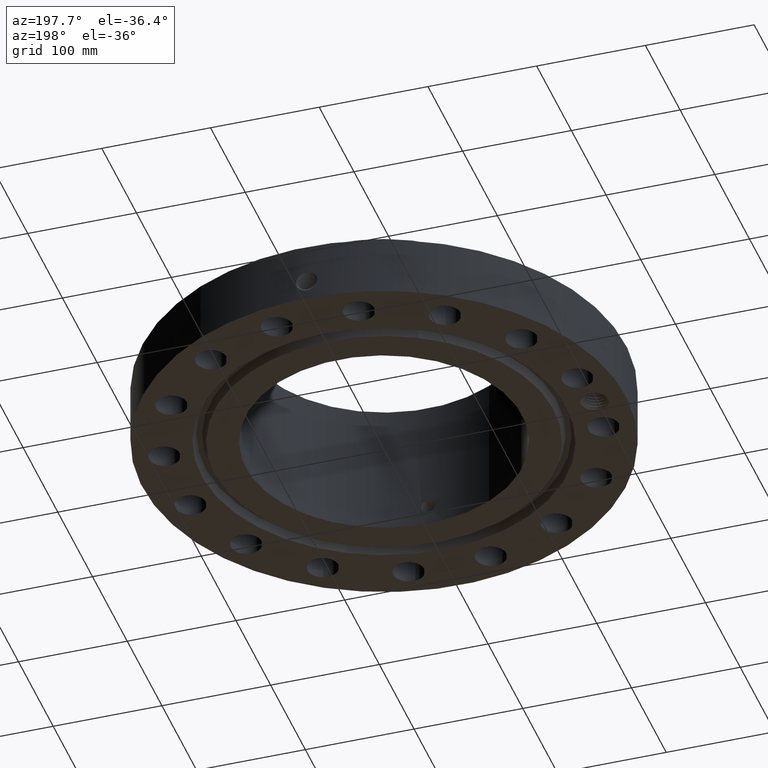
[diagram: clean part render]
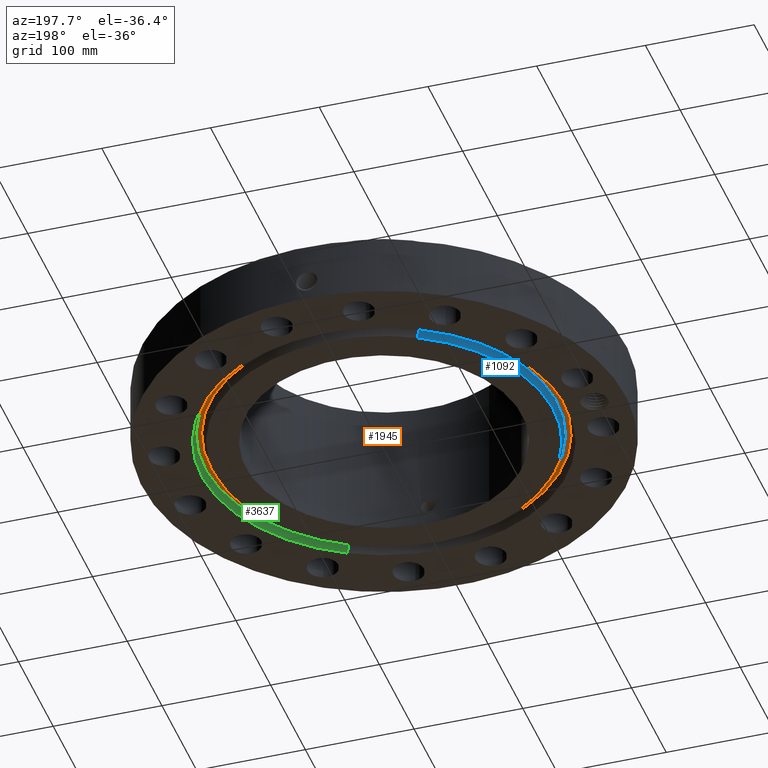
[diagram: same view with three faces highlighted in distinct colors, each labeled with its STEP entity id]
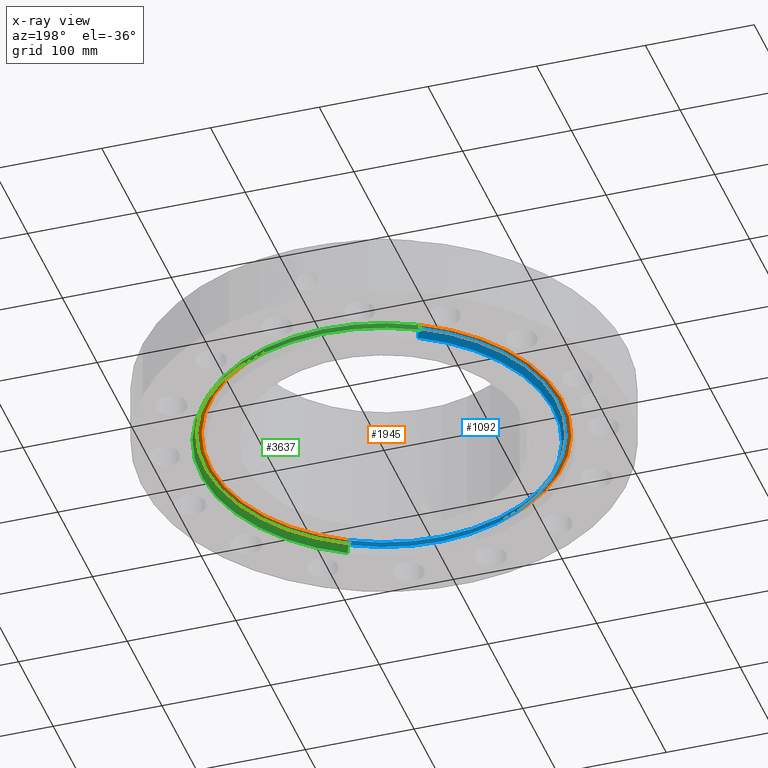
[diagram: x-ray of the same camera — body ghosted, the three highlighted faces saturated]
A machine part, auxiliary view with three faces highlighted in distinct colors.
The next image is the same camera in x-ray (body ghosted, the three faces saturated) — at least one of them is partly hidden behind the body in this view.
Their STEP definitions:

[orange] entity #1945 — the highlighted planar face has unit normal (0, 0, 1).
#1425=AXIS2_PLACEMENT_3D('Circle Axis2P3D',#1423,#1424,$) ;
#1451=AXIS2_PLACEMENT_3D('Circle Axis2P3D',#1449,#1450,$) ;
#1921=AXIS2_PLACEMENT_3D('Plane Axis2P3D',#1918,#1919,#1920) ;
#1925=AXIS2_PLACEMENT_3D('Circle Axis2P3D',#1923,#1924,$) ;
#1934=AXIS2_PLACEMENT_3D('Circle Axis2P3D',#1932,#1933,$) ;
#1423=CARTESIAN_POINT('Axis2P3D Location',(0.,0.,0.313000000001)) ;
#1427=CARTESIAN_POINT('Vertex',(3.01744636299,-5.52339851839,0.313000000001)) ;
#1429=CARTESIAN_POINT('Vertex',(-3.01744636299,5.52339851839,0.313000000001)) ;
#1449=CARTESIAN_POINT('Axis2P3D Location',(0.,0.,0.313000000001)) ;
#1918=CARTESIAN_POINT('Axis2P3D Location',(0.,6.2938790699,0.313000000001)) ;
#1923=CARTESIAN_POINT('Axis2P3D Location',(0.,0.,0.313000000001)) ;
#1927=CARTESIAN_POINT('Vertex',(-3.09522925423,5.66577914576,0.313000000001)) ;
#1929=CARTESIAN_POINT('Vertex',(3.09522925423,-5.66577914576,0.313000000001)) ;
#1932=CARTESIAN_POINT('Axis2P3D Location',(0.,0.,0.313000000001)) ;
#1424=DIRECTION('Axis2P3D Direction',(0.,0.,0.0393700787402)) ;
#1450=DIRECTION('Axis2P3D Direction',(0.,0.,0.0393700787402)) ;
#1919=DIRECTION('Axis2P3D Direction',(0.,0.,0.0393700787402)) ;
#1920=DIRECTION('Axis2P3D XDirection',(0.0393700787402,0.,0.)) ;
#1924=DIRECTION('Axis2P3D Direction',(0.,0.,0.0393700787402)) ;
#1933=DIRECTION('Axis2P3D Direction',(0.,0.,0.0393700787402)) ;
#1938=ORIENTED_EDGE('',*,*,#1931,.F.) ;
#1939=ORIENTED_EDGE('',*,*,#1936,.F.) ;
#1942=ORIENTED_EDGE('',*,*,#1431,.T.) ;
#1943=ORIENTED_EDGE('',*,*,#1453,.T.) ;
#1944=FACE_BOUND('',#1941,.T.) ;
#1945=ADVANCED_FACE('PartBody',(#1940,#1944),#1922,.F.) ;
#1426=CIRCLE('generated circle',#1425,6.2938790699) ;
#1452=CIRCLE('generated circle',#1451,6.2938790699) ;
#1926=CIRCLE('generated circle',#1925,6.45612093016) ;
#1935=CIRCLE('generated circle',#1934,6.45612093016) ;
#1431=EDGE_CURVE('',#1428,#1430,#1426,.T.) ;
#1453=EDGE_CURVE('',#1430,#1428,#1452,.T.) ;
#1931=EDGE_CURVE('',#1928,#1930,#1926,.T.) ;
#1936=EDGE_CURVE('',#1930,#1928,#1935,.T.) ;
#1937=EDGE_LOOP('',(#1938,#1939)) ;
#1941=EDGE_LOOP('',(#1942,#1943)) ;
#1940=FACE_OUTER_BOUND('',#1937,.T.) ;
#1922=PLANE('',#1921) ;
#1428=VERTEX_POINT('',#1427) ;
#1430=VERTEX_POINT('',#1429) ;
#1928=VERTEX_POINT('',#1927) ;
#1930=VERTEX_POINT('',#1929) ;

[blue] entity #1092 — the highlighted conical surface has half-angle 23 deg.
#611=AXIS2_PLACEMENT_3D('Circle Axis2P3D',#609,#610,$) ;
#1053=AXIS2_PLACEMENT_3D('Cone Axis2P3D',#1050,#1051,#1052) ;
#1083=AXIS2_PLACEMENT_3D('Circle Axis2P3D',#1081,#1082,$) ;
#604=CARTESIAN_POINT('Vertex',(-2.94391251981,5.38879572131,-1.48612530855E-016)) ;
#606=CARTESIAN_POINT('Vertex',(2.94391251981,-5.38879572131,0.)) ;
#609=CARTESIAN_POINT('Axis2P3D Location',(-1.67844740731E-015,1.1189649382E-015,0.)) ;
#1050=CARTESIAN_POINT('Axis2P3D Location',(0.,0.,-0.0600000000002)) ;
#1055=CARTESIAN_POINT('Line Origine',(-2.97383908161,5.44357592523,0.147056332492)) ;
#1059=CARTESIAN_POINT('Vertex',(-3.0037656434,5.49835612915,0.294112664984)) ;
#1066=CARTESIAN_POINT('Vertex',(3.0037656434,-5.49835612915,0.294112664984)) ;
#1069=CARTESIAN_POINT('Line Origine',(2.97383908161,-5.44357592523,0.147056332492)) ;
#1081=CARTESIAN_POINT('Axis2P3D Location',(0.,0.,0.294112664984)) ;
#610=DIRECTION('Axis2P3D Direction',(0.,0.,-0.0393700787402)) ;
#1051=DIRECTION('Axis2P3D Direction',(0.,0.,0.0393700787402)) ;
#1052=DIRECTION('Axis2P3D XDirection',(-0.0188750212049,0.0345504945626,0.)) ;
#1056=DIRECTION('Vector Direction',(-0.00737505833565,0.0134999537303,0.0362403485611)) ;
#1070=DIRECTION('Vector Direction',(0.00737505833565,-0.0134999537303,0.0362403485611)) ;
#1082=DIRECTION('Axis2P3D Direction',(0.,0.,0.0393700787402)) ;
#1057=VECTOR('Line Direction',#1056,0.0393700787402) ;
#1071=VECTOR('Line Direction',#1070,0.0393700787402) ;
#1087=ORIENTED_EDGE('',*,*,#1073,.F.) ;
#1088=ORIENTED_EDGE('',*,*,#1085,.F.) ;
#1089=ORIENTED_EDGE('',*,*,#1061,.T.) ;
#1090=ORIENTED_EDGE('',*,*,#613,.F.) ;
#1092=ADVANCED_FACE('PartBody',(#1091),#1054,.T.) ;
#612=CIRCLE('generated circle',#611,6.14050000002) ;
#1084=CIRCLE('generated circle',#1083,6.26534341944) ;
#1054=CONICAL_SURFACE('Cone',#1053,6.11503151105,0.401425727959) ;
#613=EDGE_CURVE('',#607,#605,#612,.T.) ;
#1061=EDGE_CURVE('',#1060,#605,#1058,.F.) ;
#1073=EDGE_CURVE('',#1067,#607,#1072,.F.) ;
#1085=EDGE_CURVE('',#1060,#1067,#1084,.T.) ;
#1086=EDGE_LOOP('',(#1087,#1088,#1089,#1090)) ;
#1091=FACE_OUTER_BOUND('',#1086,.T.) ;
#1058=LINE('Line',#1055,#1057) ;
#1072=LINE('Line',#1069,#1071) ;
#605=VERTEX_POINT('',#604) ;
#607=VERTEX_POINT('',#606) ;
#1060=VERTEX_POINT('',#1059) ;
#1067=VERTEX_POINT('',#1066) ;

[green] entity #3637 — the highlighted conical surface has half-angle 23 deg.
#2609=AXIS2_PLACEMENT_3D('Circle Axis2P3D',#2607,#2608,$) ;
#3610=AXIS2_PLACEMENT_3D('Cone Axis2P3D',#3607,#3608,#3609) ;
#3614=AXIS2_PLACEMENT_3D('Circle Axis2P3D',#3612,#3613,$) ;
#2607=CARTESIAN_POINT('Axis2P3D Location',(0.,0.,0.294112664984)) ;
#2611=CARTESIAN_POINT('Vertex',(3.10890997382,-5.69082153499,0.294112664984)) ;
#2613=CARTESIAN_POINT('Vertex',(-3.10890997382,5.69082153499,0.294112664984)) ;
#3607=CARTESIAN_POINT('Axis2P3D Location',(0.,0.,0.294112664984)) ;
#3612=CARTESIAN_POINT('Axis2P3D Location',(0.,0.,3.49676543189E-017)) ;
#3616=CARTESIAN_POINT('Vertex',(-3.16876309742,5.80038194284,3.49676543189E-017)) ;
#3618=CARTESIAN_POINT('Vertex',(3.16876309742,-5.80038194284,3.49676543189E-017)) ;
#3621=CARTESIAN_POINT('Line Origine',(3.13883653562,-5.74560173892,0.147056332492)) ;
#3626=CARTESIAN_POINT('Line Origine',(-3.13883653562,5.74560173892,0.147056332492)) ;
#2608=DIRECTION('Axis2P3D Direction',(0.,0.,0.0393700787402)) ;
#3608=DIRECTION('Axis2P3D Direction',(-0.,-0.,-0.0393700787402)) ;
#3609=DIRECTION('Axis2P3D XDirection',(0.0188750212049,-0.0345504945626,0.)) ;
#3613=DIRECTION('Axis2P3D Direction',(0.,0.,-0.0393700787402)) ;
#3622=DIRECTION('Vector Direction',(0.00737505833565,-0.0134999537303,-0.0362403485611)) ;
#3627=DIRECTION('Vector Direction',(-0.00737505833565,0.0134999537303,-0.0362403485611)) ;
#3623=VECTOR('Line Direction',#3622,0.0393700787402) ;
#3628=VECTOR('Line Direction',#3627,0.0393700787402) ;
#3632=ORIENTED_EDGE('',*,*,#3620,.T.) ;
#3633=ORIENTED_EDGE('',*,*,#3625,.T.) ;
#3634=ORIENTED_EDGE('',*,*,#2615,.T.) ;
#3635=ORIENTED_EDGE('',*,*,#3630,.F.) ;
#3637=ADVANCED_FACE('PartBody',(#3636),#3611,.F.) ;
#2610=CIRCLE('generated circle',#2609,6.48465658061) ;
#3615=CIRCLE('generated circle',#3614,6.60950000003) ;
#3611=CONICAL_SURFACE('Cone',#3610,6.48465658061,0.401425727959) ;
#2615=EDGE_CURVE('',#2612,#2614,#2610,.T.) ;
#3620=EDGE_CURVE('',#3617,#3619,#3615,.T.) ;
#3625=EDGE_CURVE('',#3619,#2612,#3624,.F.) ;
#3630=EDGE_CURVE('',#3617,#2614,#3629,.F.) ;
#3631=EDGE_LOOP('',(#3632,#3633,#3634,#3635)) ;
#3636=FACE_OUTER_BOUND('',#3631,.T.) ;
#3624=LINE('Line',#3621,#3623) ;
#3629=LINE('Line',#3626,#3628) ;
#2612=VERTEX_POINT('',#2611) ;
#2614=VERTEX_POINT('',#2613) ;
#3617=VERTEX_POINT('',#3616) ;
#3619=VERTEX_POINT('',#3618) ;